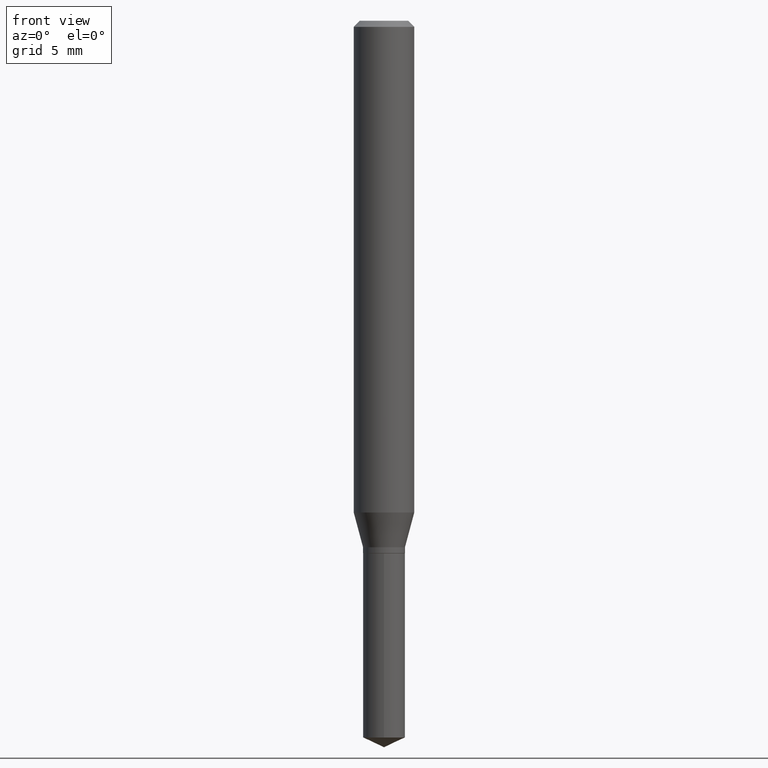
[diagram: clean part render]
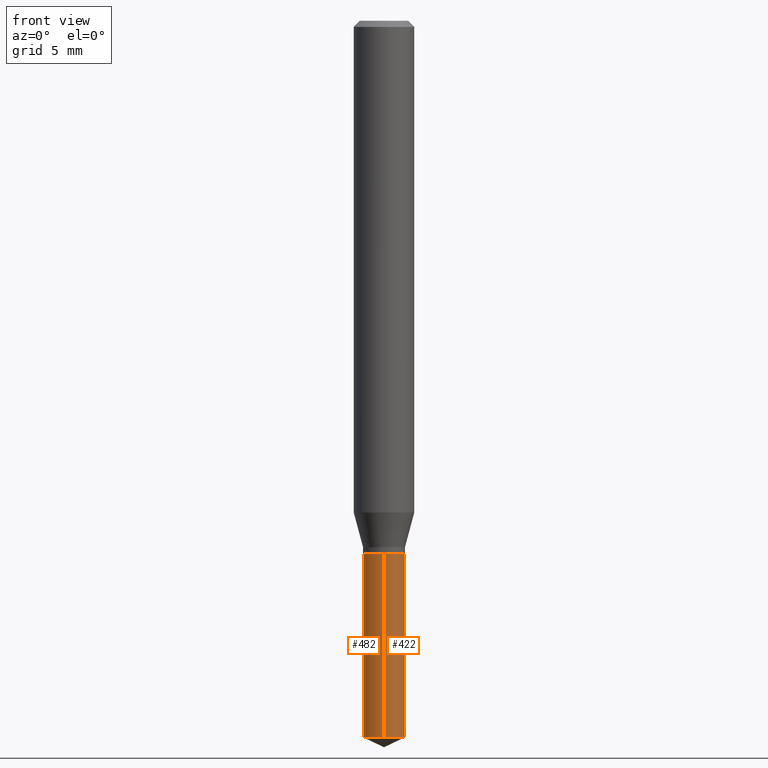
[diagram: same view with one multi-face feature highlighted, each face labeled with its STEP entity id]
A machine part, front view. The highlighted faces form ONE feature: a constant-radius fillet chain: 2 tangent blend faces with common blend radius 1.0998 mm. The faces share edges in the B-rep.
Their STEP definitions:
[1] entity #482 (Cylinder):
#7 = FACE_OUTER_BOUND ( 'NONE', #94, .T. ) ;
#13 = EDGE_CURVE ( 'NONE', #424, #394, #458, .T. ) ;
#15 = DIRECTION ( 'NONE',  ( -2.445399690415121530E-29, 3.491580316559632610E-15, 1.000000000000000000 ) ) ;
#18 = VERTEX_POINT ( 'NONE', #28 ) ;
#28 = CARTESIAN_POINT ( 'NONE',  ( 3.076650045841595075E-16, 0.04329999999999615407, -1.100000000000000089 ) ) ;
#29 = DIRECTION ( 'NONE',  ( -2.445399690415121530E-29, 3.491580316559632610E-15, 1.000000000000000000 ) ) ;
#40 = LINE ( 'NONE', #107, #156 ) ;
#52 = ORIENTED_EDGE ( 'NONE', *, *, #149, .T. ) ;
#82 = CARTESIAN_POINT ( 'NONE',  ( -3.023622839437883944E-16, -0.04330000000000383542, -1.099999999999999867 ) ) ;
#85 = VECTOR ( 'NONE', #121, 39.37007874015748143 ) ;
#89 = CARTESIAN_POINT ( 'NONE',  ( 3.076650045841501397E-16, 0.04329999999999615407, -1.100000000000000089 ) ) ;
#94 = EDGE_LOOP ( 'NONE', ( #158, #115, #52, #285 ) ) ;
#107 = CARTESIAN_POINT ( 'NONE',  ( -3.023622839437883944E-16, -0.04330000000000383542, -1.099999999999999867 ) ) ;
#115 = ORIENTED_EDGE ( 'NONE', *, *, #13, .T. ) ;
#121 = DIRECTION ( 'NONE',  ( -2.445399690415121810E-29, 3.491580316559632610E-15, 1.000000000000000000 ) ) ;
#148 = AXIS2_PLACEMENT_3D ( 'NONE', #303, #454, #264 ) ;
#149 = EDGE_CURVE ( 'NONE', #394, #206, #40, .T. ) ;
#156 = VECTOR ( 'NONE', #159, 39.37007874015748143 ) ;
#158 = ORIENTED_EDGE ( 'NONE', *, *, #224, .F. ) ;
#159 = DIRECTION ( 'NONE',  ( -2.445399690415121810E-29, 3.491580316559632610E-15, 1.000000000000000000 ) ) ;
#176 = CARTESIAN_POINT ( 'NONE',  ( 3.076650045841595568E-16, 0.04329999999999482874, -1.479808878401888794 ) ) ;
#191 = CARTESIAN_POINT ( 'NONE',  ( 2.690015686803650369E-29, -3.840629472727460101E-15, -1.100000000000000089 ) ) ;
#206 = VERTEX_POINT ( 'NONE', #82 ) ;
#212 = AXIS2_PLACEMENT_3D ( 'NONE', #191, #15, #342 ) ;
#224 = EDGE_CURVE ( 'NONE', #424, #18, #233, .T. ) ;
#226 = CARTESIAN_POINT ( 'NONE',  ( 2.690015686803650369E-29, -3.840629472727460101E-15, -1.100000000000000089 ) ) ;
#233 = LINE ( 'NONE', #89, #85 ) ;
#243 = CIRCLE ( 'NONE', #212, 0.04329999999999999127 ) ;
#245 = CARTESIAN_POINT ( 'NONE',  ( -3.023622839437790760E-16, -0.04330000000000516075, -1.479808878401888128 ) ) ;
#255 = EDGE_CURVE ( 'NONE', #18, #206, #243, .T. ) ;
#257 = CYLINDRICAL_SURFACE ( 'NONE', #345, 0.04329999999999999127 ) ;
#264 = DIRECTION ( 'NONE',  ( -6.982962677686265922E-15, -1.000000000000000000, 6.309117768277745325E-15 ) ) ;
#285 = ORIENTED_EDGE ( 'NONE', *, *, #255, .F. ) ;
#303 = CARTESIAN_POINT ( 'NONE',  ( 3.618800200464542381E-29, -5.166762676610084708E-15, -1.479808878401888572 ) ) ;
#342 = DIRECTION ( 'NONE',  ( -6.982962677686265922E-15, -1.000000000000000000, 3.154558884138872662E-15 ) ) ;
#345 = AXIS2_PLACEMENT_3D ( 'NONE', #226, #29, #445 ) ;
#394 = VERTEX_POINT ( 'NONE', #245 ) ;
#424 = VERTEX_POINT ( 'NONE', #176 ) ;
#445 = DIRECTION ( 'NONE',  ( -6.982962677686265922E-15, -1.000000000000000000, 3.154558884138872662E-15 ) ) ;
#454 = DIRECTION ( 'NONE',  ( -2.445399690415121530E-29, 3.491580316559632610E-15, 1.000000000000000000 ) ) ;
#458 = CIRCLE ( 'NONE', #148, 0.04329999999999999127 ) ;
#482 = ADVANCED_FACE ( 'NONE', ( #7 ), #257, .T. ) ;
[2] entity #422 (Cylinder):
#18 = VERTEX_POINT ( 'NONE', #28 ) ;
#25 = DIRECTION ( 'NONE',  ( -6.982962677686265922E-15, -1.000000000000000000, 3.154558884138872662E-15 ) ) ;
#28 = CARTESIAN_POINT ( 'NONE',  ( 3.076650045841595075E-16, 0.04329999999999615407, -1.100000000000000089 ) ) ;
#40 = LINE ( 'NONE', #107, #156 ) ;
#62 = ORIENTED_EDGE ( 'NONE', *, *, #377, .F. ) ;
#66 = DIRECTION ( 'NONE',  ( -6.982962677686265922E-15, -1.000000000000000000, 6.309117768277745325E-15 ) ) ;
#79 = CARTESIAN_POINT ( 'NONE',  ( 3.618800200464542381E-29, -5.166762676610084708E-15, -1.479808878401888572 ) ) ;
#82 = CARTESIAN_POINT ( 'NONE',  ( -3.023622839437883944E-16, -0.04330000000000383542, -1.099999999999999867 ) ) ;
#85 = VECTOR ( 'NONE', #121, 39.37007874015748143 ) ;
#89 = CARTESIAN_POINT ( 'NONE',  ( 3.076650045841501397E-16, 0.04329999999999615407, -1.100000000000000089 ) ) ;
#107 = CARTESIAN_POINT ( 'NONE',  ( -3.023622839437883944E-16, -0.04330000000000383542, -1.099999999999999867 ) ) ;
#108 = ORIENTED_EDGE ( 'NONE', *, *, #133, .T. ) ;
#121 = DIRECTION ( 'NONE',  ( -2.445399690415121810E-29, 3.491580316559632610E-15, 1.000000000000000000 ) ) ;
#133 = EDGE_CURVE ( 'NONE', #394, #424, #337, .T. ) ;
#149 = EDGE_CURVE ( 'NONE', #394, #206, #40, .T. ) ;
#155 = EDGE_LOOP ( 'NONE', ( #108, #466, #62, #440 ) ) ;
#156 = VECTOR ( 'NONE', #159, 39.37007874015748143 ) ;
#159 = DIRECTION ( 'NONE',  ( -2.445399690415121810E-29, 3.491580316559632610E-15, 1.000000000000000000 ) ) ;
#171 = CARTESIAN_POINT ( 'NONE',  ( 2.690015686803650369E-29, -3.840629472727460101E-15, -1.100000000000000089 ) ) ;
#176 = CARTESIAN_POINT ( 'NONE',  ( 3.076650045841595568E-16, 0.04329999999999482874, -1.479808878401888794 ) ) ;
#182 = DIRECTION ( 'NONE',  ( -2.445399690415121530E-29, 3.491580316559632610E-15, 1.000000000000000000 ) ) ;
#189 = AXIS2_PLACEMENT_3D ( 'NONE', #79, #182, #66 ) ;
#206 = VERTEX_POINT ( 'NONE', #82 ) ;
#215 = CARTESIAN_POINT ( 'NONE',  ( 2.690015686803650369E-29, -3.840629472727460101E-15, -1.100000000000000089 ) ) ;
#224 = EDGE_CURVE ( 'NONE', #424, #18, #233, .T. ) ;
#233 = LINE ( 'NONE', #89, #85 ) ;
#245 = CARTESIAN_POINT ( 'NONE',  ( -3.023622839437790760E-16, -0.04330000000000516075, -1.479808878401888128 ) ) ;
#254 = AXIS2_PLACEMENT_3D ( 'NONE', #215, #401, #385 ) ;
#275 = AXIS2_PLACEMENT_3D ( 'NONE', #171, #322, #25 ) ;
#320 = FACE_OUTER_BOUND ( 'NONE', #155, .T. ) ;
#322 = DIRECTION ( 'NONE',  ( -2.445399690415121530E-29, 3.491580316559632610E-15, 1.000000000000000000 ) ) ;
#337 = CIRCLE ( 'NONE', #189, 0.04329999999999999127 ) ;
#377 = EDGE_CURVE ( 'NONE', #206, #18, #453, .T. ) ;
#385 = DIRECTION ( 'NONE',  ( -6.982962677686265922E-15, -1.000000000000000000, 3.154558884138872662E-15 ) ) ;
#394 = VERTEX_POINT ( 'NONE', #245 ) ;
#401 = DIRECTION ( 'NONE',  ( -2.445399690415121530E-29, 3.491580316559632610E-15, 1.000000000000000000 ) ) ;
#422 = ADVANCED_FACE ( 'NONE', ( #320 ), #474, .T. ) ;
#424 = VERTEX_POINT ( 'NONE', #176 ) ;
#440 = ORIENTED_EDGE ( 'NONE', *, *, #149, .F. ) ;
#453 = CIRCLE ( 'NONE', #254, 0.04329999999999999127 ) ;
#466 = ORIENTED_EDGE ( 'NONE', *, *, #224, .T. ) ;
#474 = CYLINDRICAL_SURFACE ( 'NONE', #275, 0.04329999999999999127 ) ;